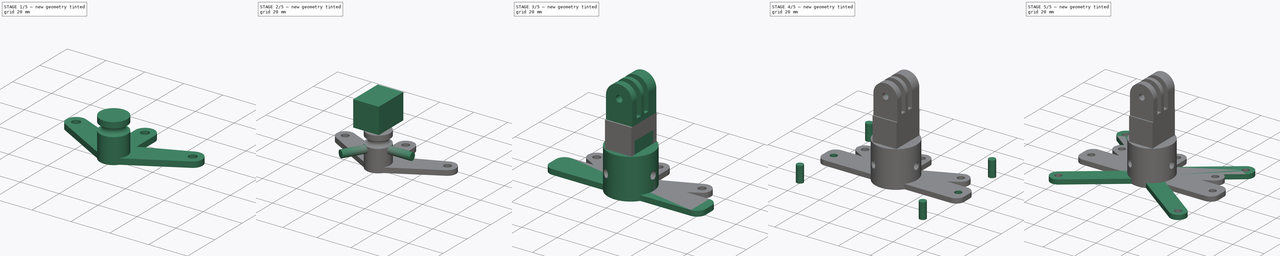
[diagram: build sequence overview — one tinted view per stage of 5, left to right]
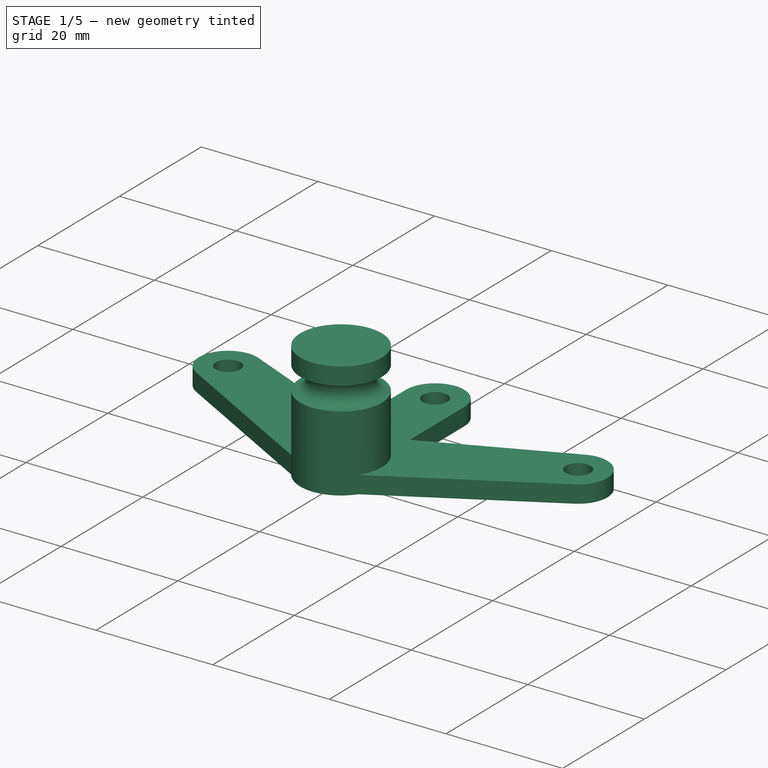
[diagram: stage 1 of 5 — iso view after this stage's code; geometry added in this stage tinted green]
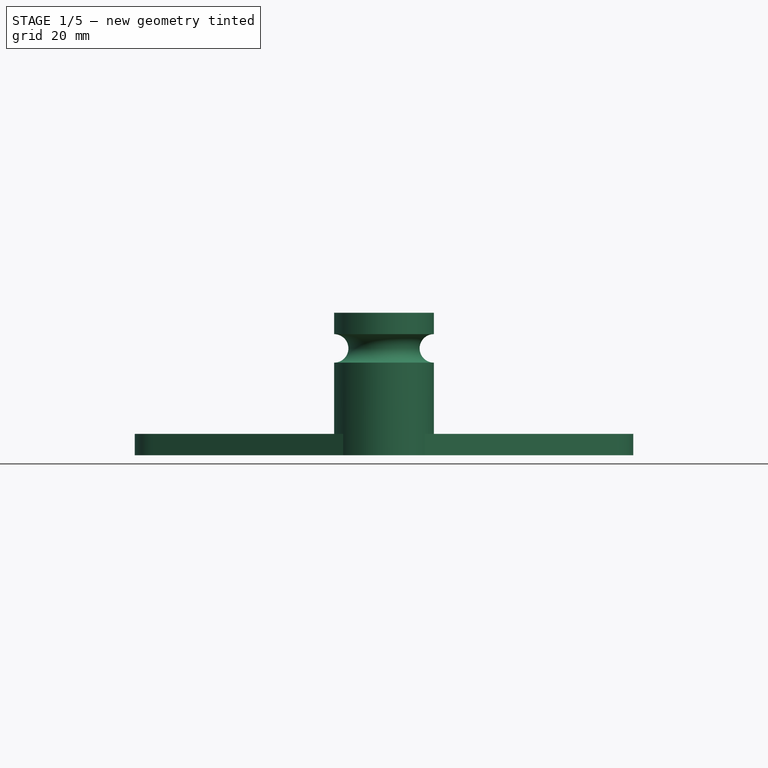
[diagram: stage 1 of 5 — front view after this stage's code; geometry added in this stage tinted green]
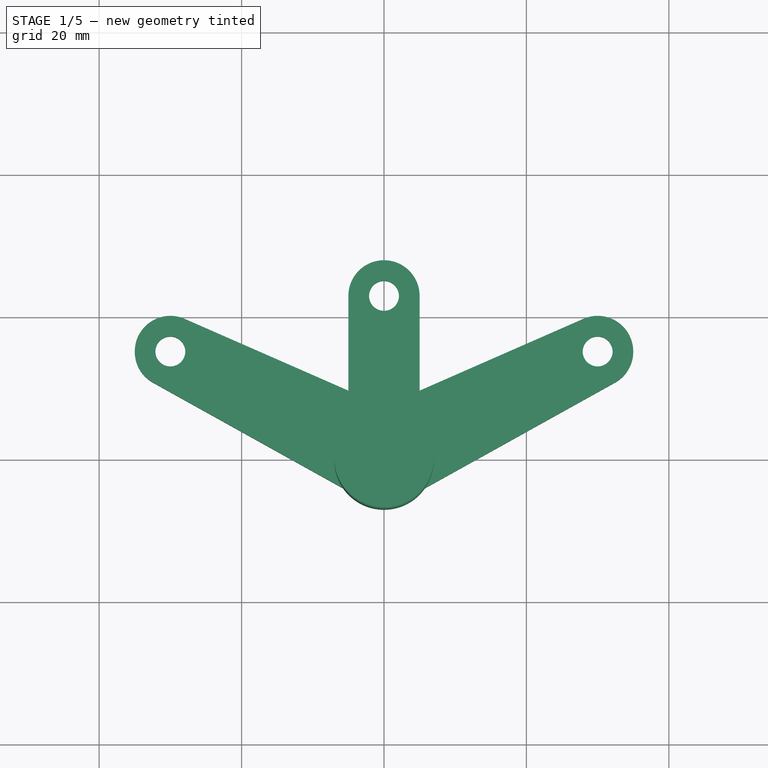
[diagram: stage 1 of 5 — top view after this stage's code; geometry added in this stage tinted green]
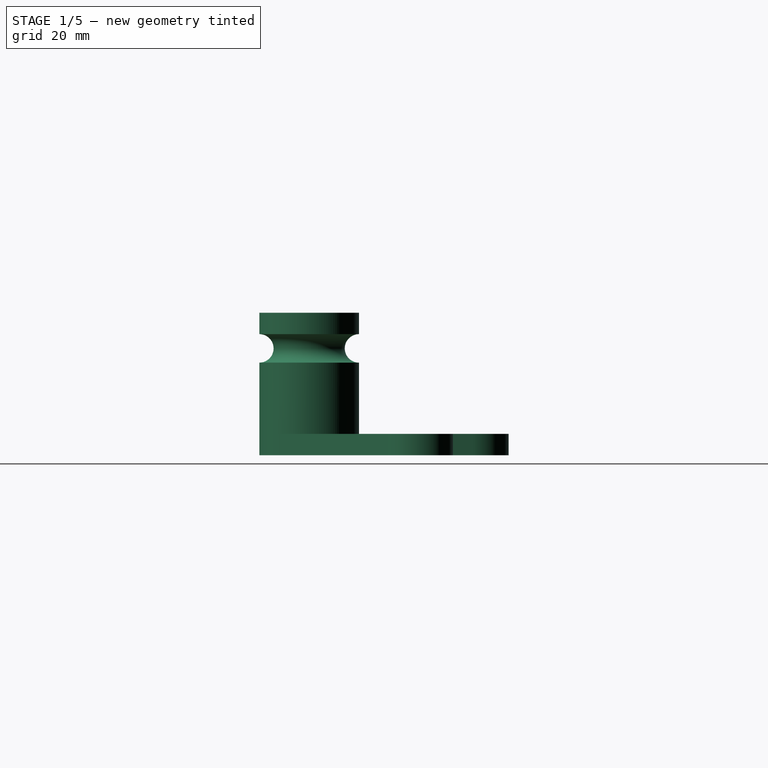
[diagram: stage 1 of 5 — right view after this stage's code; geometry added in this stage tinted green]
FCSTD DOCUMENT  (FreeCAD 0.19R23578 (Git))
Label: rpiAcamera_stand
License: All rights reserved
LicenseURL: http://en.wikipedia.org/wiki/All_rights_reserved
objects: Part::Cylinder×6, Part::MultiFuse×5, Part::FeaturePython×4, Part::Cut×4, Part::Box×3, Part::Torus×2, PartDesign::ShapeBinder×2, Sketcher::SketchObject×2, PartDesign::Pad×2, PartDesign::Body×2, Part::Feature×2, Part::Fillet×1, App::Part×1
note: 34 computed .brp shape members not serialized (recipe doc carries the construction recipe); baked Part::Feature solids carry a one-line shape summary decoded from their .brp

FEATURE [App::Part] Part  label="top part"
  Group = -> [Cut003003]
  Origin = -> Origin
  Placement = pos=(0,0,4) rot=(0,0,1;0rad)
FEATURE [Part::Cylinder] Cylinder005  label="base cylinder001"
  Angle = 360
  AttacherType = Attacher::AttachEngine3D
  Height = 20
  Radius = 7
FEATURE [Part::Torus] Torus001
  Angle1 = -180
  Angle2 = 180
  Angle3 = 360
  AttacherType = Attacher::AttachEngine3D
  Placement = pos=(0,0,15) rot=(0,0,1;0rad)
  Radius1 = 7
  Radius2 = 2
  expr: Radius1 = <<base cylinder001>>.Radius
  expr: .Placement.Base.z = <<base cylinder001>>.Height - 5mm
FEATURE [PartDesign::ShapeBinder] ShapeBinder
  Support = -> [Cylinder005]
  TraceSupport = false
FEATURE [Sketcher::SketchObject] Sketch003
  ExternalGeometry = -> [ShapeBinder]
  MapMode = 5
  Support = -> [XY_Plane003]
  sketch-geometry (13):
    g0: Circle CenterX=-30 CenterY=15.2041 CenterZ=0 NormalX=0 NormalY=0 NormalZ=1 AngleXU=0 Radius=2.1
    g1: Circle CenterX=30 CenterY=15.2041 CenterZ=0 NormalX=0 NormalY=0 NormalZ=1 AngleXU=0 Radius=2.1
    g2: Circle CenterX=4e-16 CenterY=23.0143 CenterZ=0 NormalX=0 NormalY=0 NormalZ=1 AngleXU=0 Radius=2.1
    g3: LineSegment StartX=-32.4307 StartY=10.8347 StartZ=0 EndX=-5.73209 EndY=-4.01785 EndZ=0
    g4: LineSegment StartX=-27.9921 StartY=19.7832 StartZ=0 EndX=-5 EndY=9.70126 EndZ=0
    g5: LineSegment StartX=5 StartY=23.0143 StartZ=0 EndX=5 EndY=9.70126 EndZ=0
    g6: LineSegment StartX=-5 StartY=9.70126 StartZ=0 EndX=-5 EndY=23.0143 EndZ=0
    g7: LineSegment StartX=5 StartY=9.70126 StartZ=0 EndX=27.9921 EndY=19.7832 EndZ=0
    g8: LineSegment StartX=5.73209 StartY=-4.01785 StartZ=0 EndX=32.4307 EndY=10.8347 EndZ=0
    g9: ArcOfCircle CenterX=4e-16 CenterY=23.0143 CenterZ=0 NormalX=0 NormalY=0 NormalZ=1 AngleXU=0 Radius=5 StartAngle=0 EndAngle=3.14159
    g10: ArcOfCircle CenterX=-30 CenterY=15.2041 CenterZ=0 NormalX=0 NormalY=0 NormalZ=1 AngleXU=0 Radius=5 StartAngle=1.15755 EndAngle=4.20472
    g11: ArcOfCircle CenterX=30 CenterY=15.2041 CenterZ=0 NormalX=0 NormalY=0 NormalZ=1 AngleXU=0 Radius=5 StartAngle=5.22006 EndAngle=8.26723
    g12: ArcOfCircle CenterX=-4e-16 CenterY=1.2e-15 CenterZ=0 NormalX=0 NormalY=0 NormalZ=1 AngleXU=0 Radius=7 StartAngle=3.75295 EndAngle=5.67183
  constraints (30):
    c: Equal(g0,g2)
    c: Equal(g2,g1)
    c: Radius(g2) = 2.1
    c: Symmetric(g1,g0,g-2)
    c: DistanceX(g0,g1) = 60
    c: Distance(g2,g0) = 31
    c: Distance(g2,g1) = 31
    c: Vertical(g5)
    c: Symmetric(g5,g6,g-2)
    c: Tangent(g9,g6) = 1.5708
    c: Tangent(g9,g5) = 1.5708
    c: Coincident(g9,g2)
    c: DistanceX(g6,g5) = 10
    c: Tangent(g10,g4) = 1.5708
    c: Tangent(g10,g3) = -1.5708
    c: Coincident(g10,g0)
    c: Radius(g10) = 5
    c: PointOnObject(g3,g-3)
    c: Tangent(g11,g8) = -1.5708
    c: Tangent(g11,g7) = 1.5708
    c: Radius(g11) = 5
    c: Coincident(g11,g1)
    c: PointOnObject(g8,g-3)
    c: Equal(g7,g4)
    c: Equal(g3,g8)
    c: Coincident(g12,g3)
    c: Coincident(g12,g8)
    c: Tangent(g12,g-3)
    c: Coincident(g4,g6)
    c: Coincident(g5,g7)
FEATURE [PartDesign::Pad] Pad003  label="base pad001"
  Direction = (1,1,1)
  Length = 3
  Length2 = 100
  Profile = -> Sketch003
  Type = 0
  expr: Length = 3
FEATURE [PartDesign::Body] Body003  label="base body001"
  Group = -> [Sketch003,Pad003,ShapeBinder]
  Origin = -> Origin003
  Tip = -> Pad003
FEATURE [Part::MultiFuse] Fusion005  label="base fusion001"
  Shapes = -> [Cylinder005,Body003]
FEATURE [Part::Cut] Cut003004  label="base cut for big metal plate"
  Base = -> Fusion005
  Tool = -> Torus001
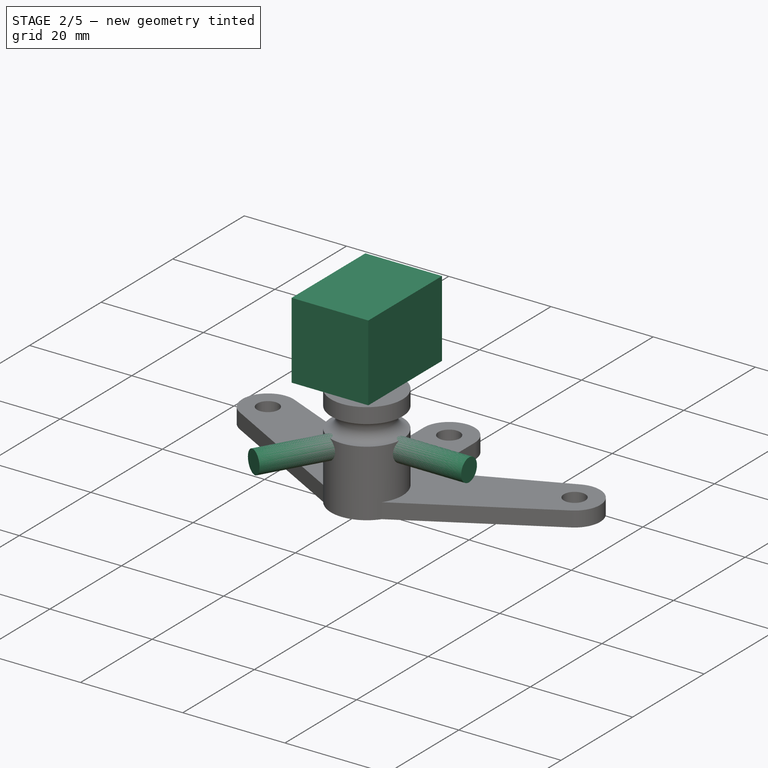
[diagram: stage 2 of 5 — iso view after this stage's code; geometry added in this stage tinted green]
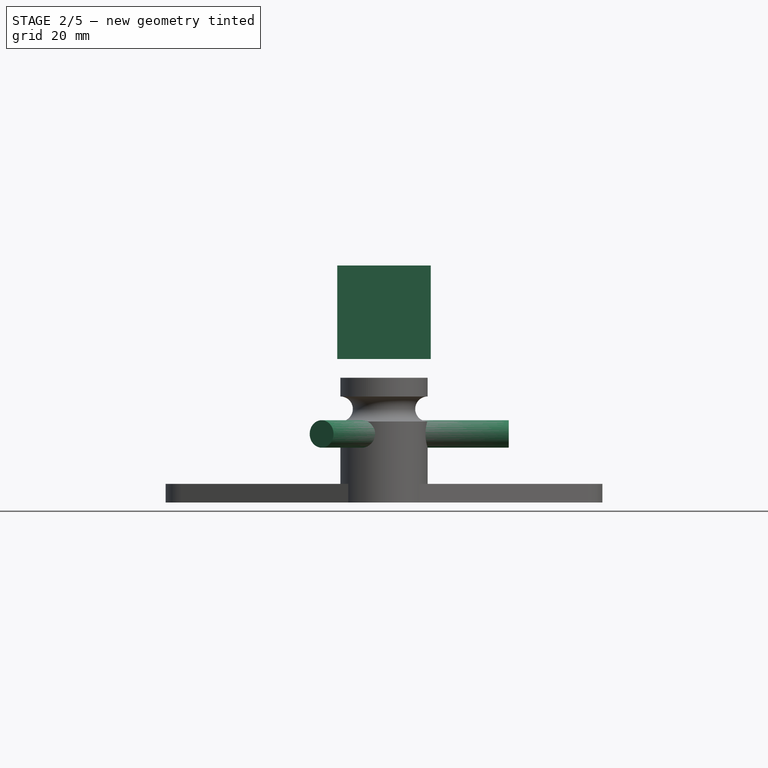
[diagram: stage 2 of 5 — front view after this stage's code; geometry added in this stage tinted green]
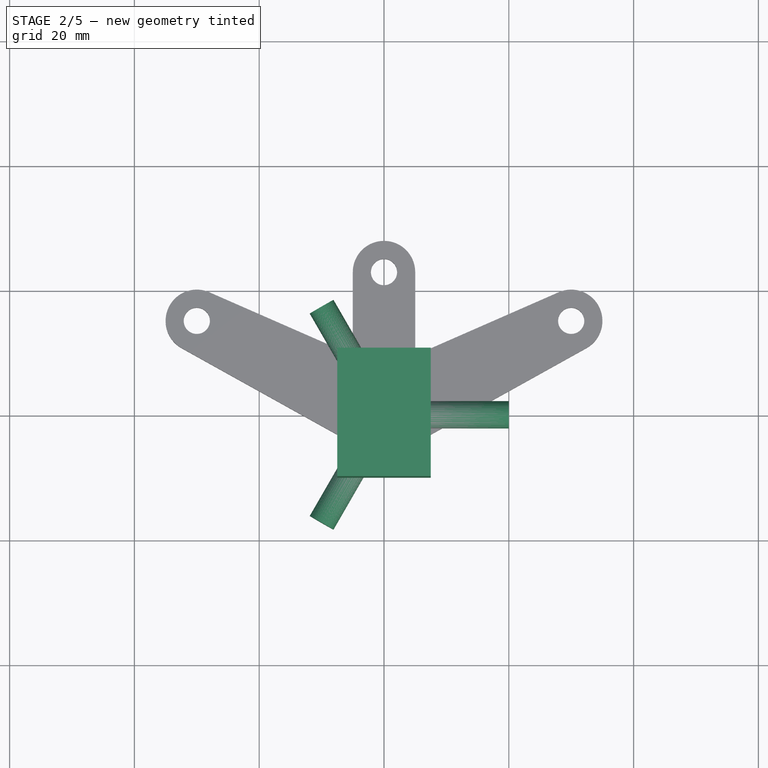
[diagram: stage 2 of 5 — top view after this stage's code; geometry added in this stage tinted green]
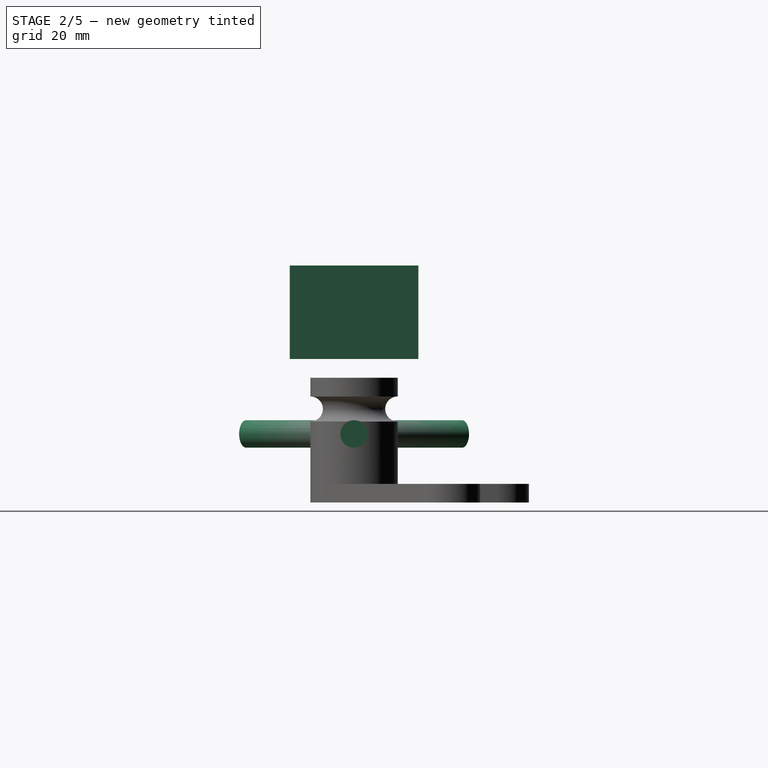
[diagram: stage 2 of 5 — right view after this stage's code; geometry added in this stage tinted green]
FEATURE [Part::Cylinder] Cylinder  label="base cylinder"
  Angle = 360
  AttacherType = Attacher::AttachEngine3D
  Height = 20
  Radius = 7
FEATURE [Part::FeaturePython] Tube  label="tube"  # WARN: FeaturePython — macro-defined, semantics opaque (R4)
  AttacherType = Attacher::AttachEngine3D
  Height = 20
  InnerRadius = 7.5
  OuterRadius = 13
  expr: InnerRadius = <<base cylinder>>.Radius + 0.5mm
  expr: OuterRadius = 13mm
  expr: Height = <<base cylinder>>.Height
FEATURE [Part::Feature] Cut003002  label="side 3"
  Placement = pos=(0,-1,38) rot=(0,0,1;0rad)
  shape: bbox 15 x 19.6 x 20 mm, 23 faces (baked)
  expr: .Placement.Base.z = <<tube>>.Height + <<top cylinder>>.Height + <<top cube>>.Height
FEATURE [Part::Cylinder] Cylinder003  label="top cylinder"
  Angle = 360
  AttacherType = Attacher::AttachEngine3D
  Height = 3
  Placement = pos=(0,0,20) rot=(0,0,1;0rad)
  Radius = 13
  expr: .Placement.Base.z = Tube.Height
  expr: Radius = Tube.OuterRadius
FEATURE [Part::Box] Box002  label="top cube"
  AttacherType = Attacher::AttachEngine3D
  Height = 15
  Length = 15
  Placement = pos=(-7.5,-10.3,23) rot=(0,0,1;0rad)
  Width = 20.6
  expr: .Placement.Base.x = -Length / 2
  expr: .Placement.Base.y = -Width / 2
  expr: .Placement.Base.z = <<tube>>.Height + <<top cylinder>>.Height
FEATURE [Part::Cylinder] Cylinder004  label="top insert holes"
  Angle = 360
  AttacherType = Attacher::AttachEngine3D
  Height = 20
  Placement = pos=(0,0,0) rot=(0,1,0;1.5708rad)
  Radius = 2.2
FEATURE [Part::FeaturePython] Array002  label="top insert hole array"  # Draft array (typed FeaturePython)
  Angle = 360
  ArrayType = 1
  Axis = (0,0,1)
  Base = -> Cylinder004
  Center = (0,0,0)
  Count = 3
  ExpandArray = false
  Fuse = false
  IntervalAxis = (0,0,0)
  IntervalX = (50,0,0)
  IntervalY = (0,50,0)
  IntervalZ = (0,0,50)
  NumberCircles = 3
  NumberPolar = 3
  NumberX = 2
  NumberY = 2
  NumberZ = 1
  Placement = pos=(0,0,11) rot=(0,0,1;0rad)
  PlacementList = 3 placements: [(0,0,0),(0,0,0),(0,0,0)]
  RadialDistance = 50
  ScaleList = (3) [(1,1,1),(1,1,1),(1,1,1)]
  Symmetry = 1
  TangentialDistance = 25
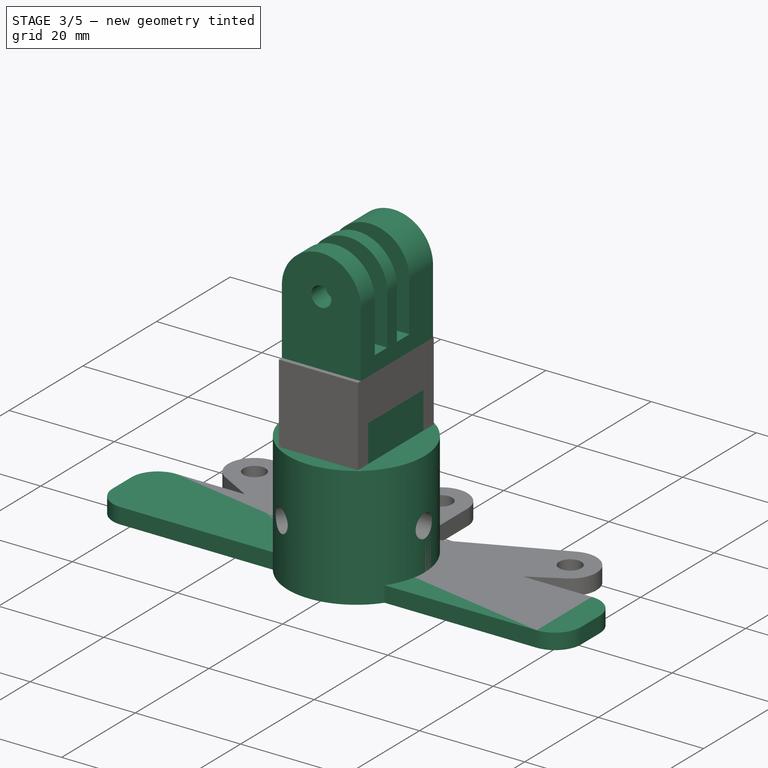
[diagram: stage 3 of 5 — iso view after this stage's code; geometry added in this stage tinted green]
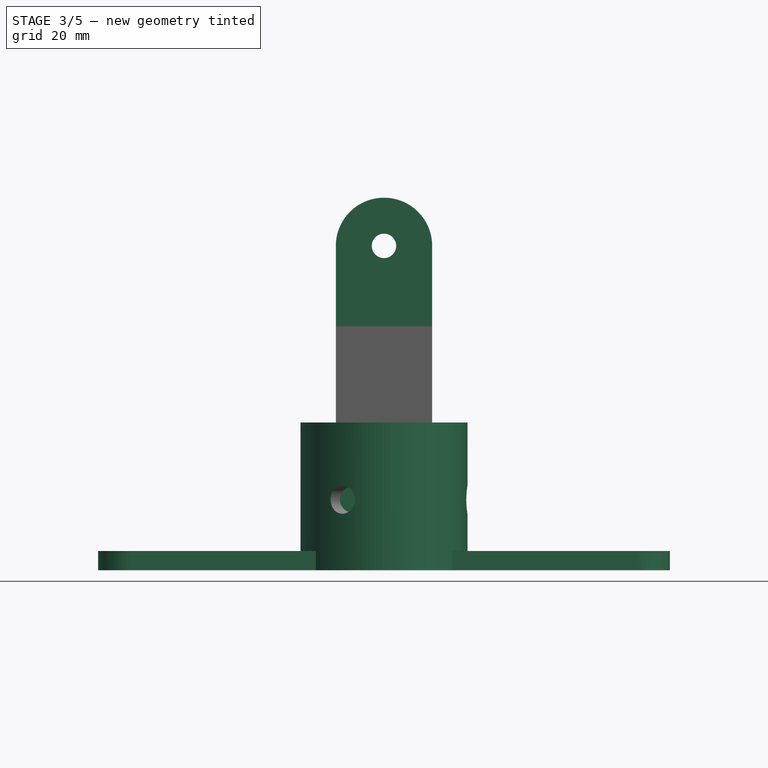
[diagram: stage 3 of 5 — front view after this stage's code; geometry added in this stage tinted green]
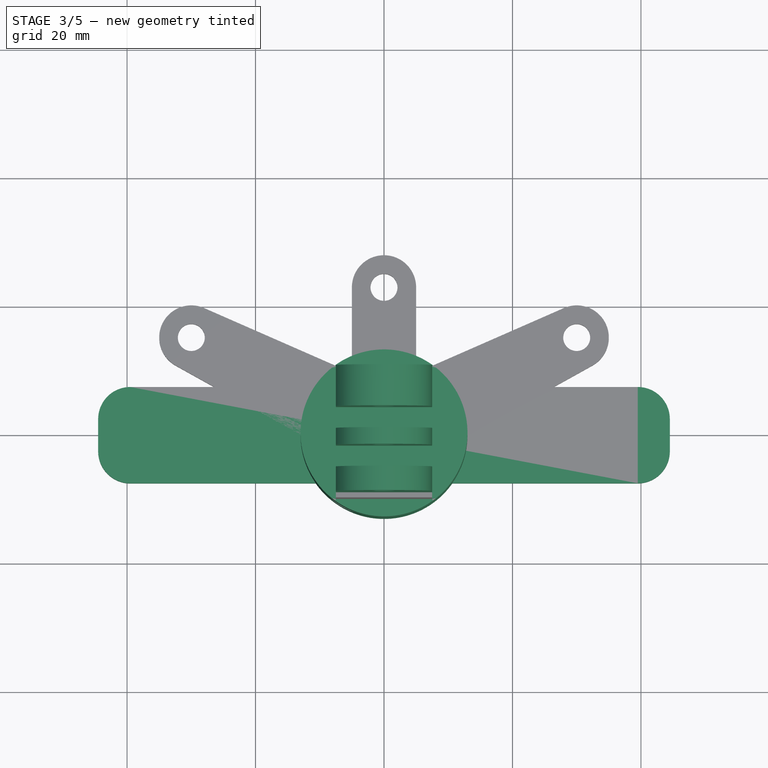
[diagram: stage 3 of 5 — top view after this stage's code; geometry added in this stage tinted green]
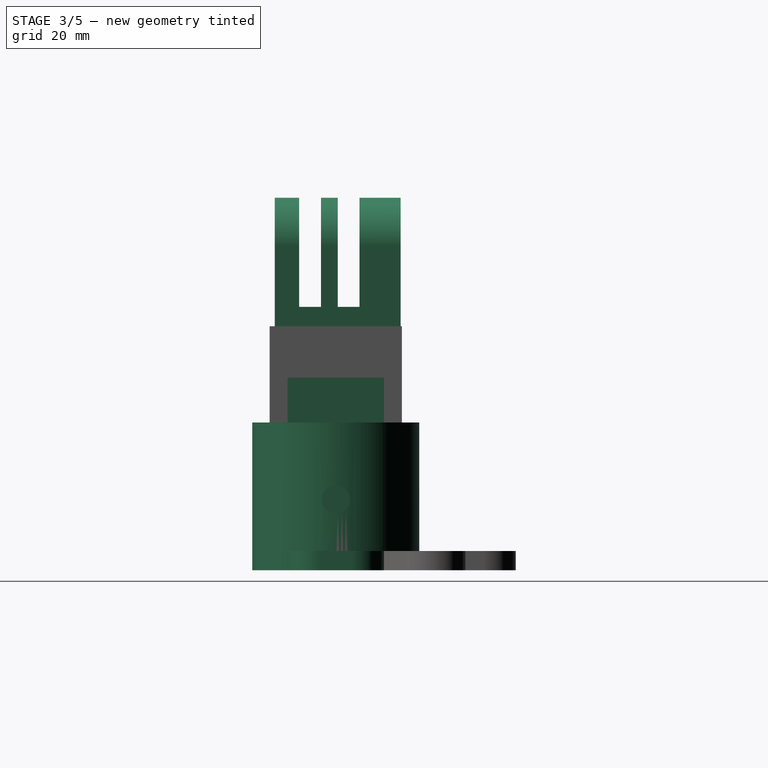
[diagram: stage 3 of 5 — right view after this stage's code; geometry added in this stage tinted green]
FEATURE [Part::Feature] Cut001001  label="side 2"
  Placement = pos=(0,0,30) rot=(0,0,1;1.5708rad)
  shape: bbox 15 x 15 x 20 mm, 16 faces (baked)
  expr: .Placement.Base.z = <<rpi3 extender>>.Height
FEATURE [Part::Box] Box  label="rpi3 attachment"
  AttacherType = Attacher::AttachEngine3D
  Height = 3
  Length = 89
  Placement = pos=(-44.5,-7.5,0) rot=(0,0,1;0rad)
  Width = 15
  expr: .Placement.Base.x = -Length / 2
  expr: .Placement.Base.y = -Width / 2
FEATURE [Part::Box] Box001  label="rpi3 extender"
  AttacherType = Attacher::AttachEngine3D
  Height = 30
  Length = 15
  Placement = pos=(-7.5,-7.5,0) rot=(0,0,1;0rad)
  Width = 15
  expr: Width = <<rpi3 attachment>>.Width
  expr: .Placement.Base.y = -Width / 2
  expr: .Placement.Base.x = -Length / 2
FEATURE [Part::Fillet] Fillet  label="rpi3 attachment fillet"
  Base = -> Box
  Edges = 4 edges r=5: [Edge1,Edge3,Edge5,Edge7]
FEATURE [Part::MultiFuse] Fusion003  label="top fusion"
  Shapes = -> [Cut003002,Cylinder003,Box002,Tube]
FEATURE [Part::Cut] Cut003003  label="top cut"
  Base = -> Fusion003
  Tool = -> Array002
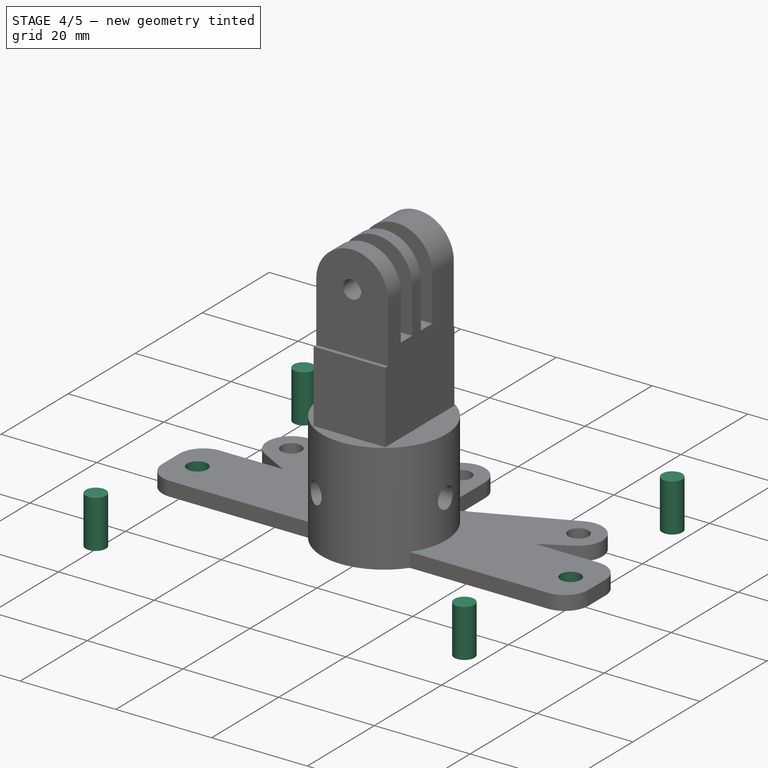
[diagram: stage 4 of 5 — iso view after this stage's code; geometry added in this stage tinted green]
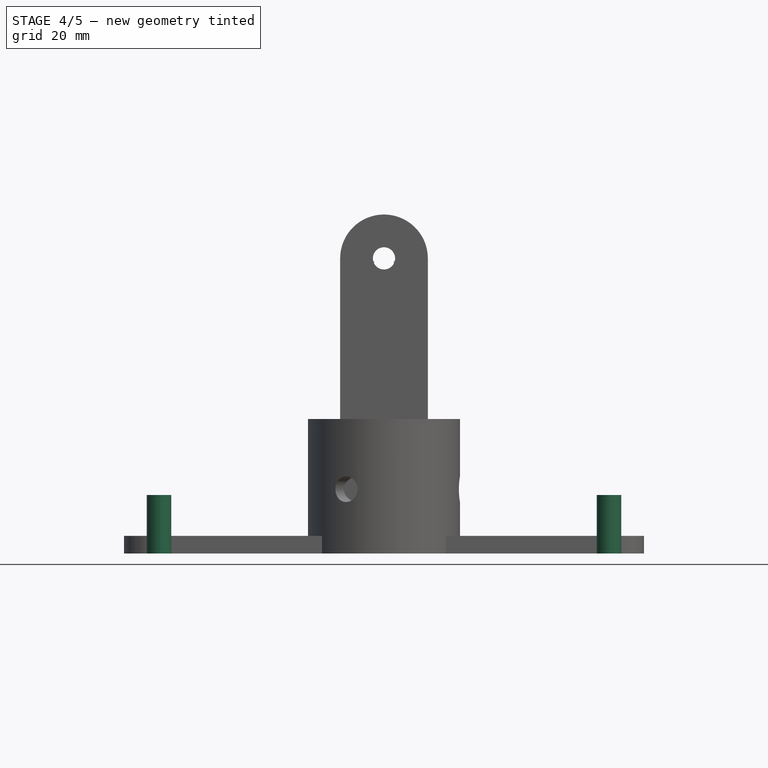
[diagram: stage 4 of 5 — front view after this stage's code; geometry added in this stage tinted green]
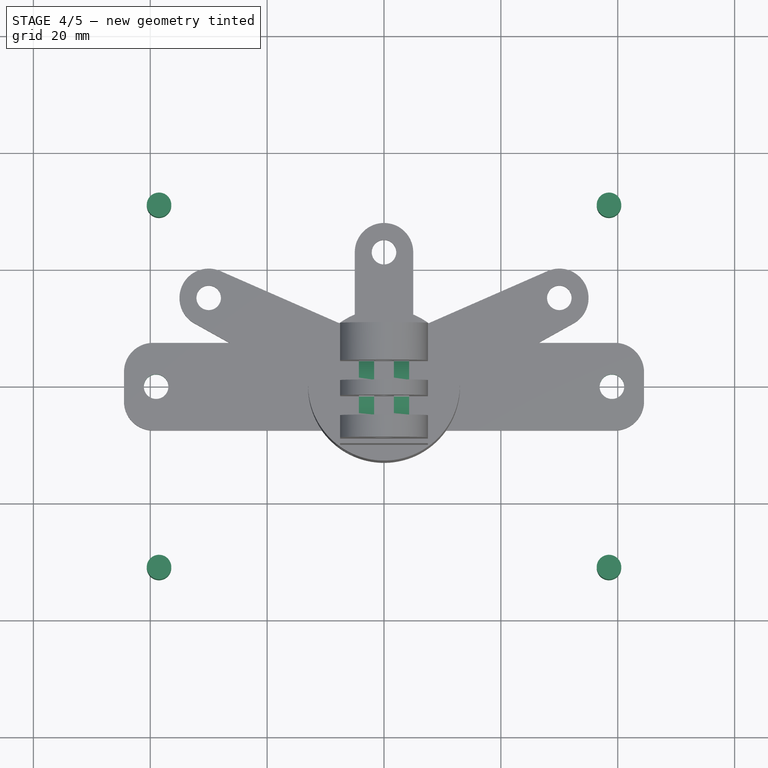
[diagram: stage 4 of 5 — top view after this stage's code; geometry added in this stage tinted green]
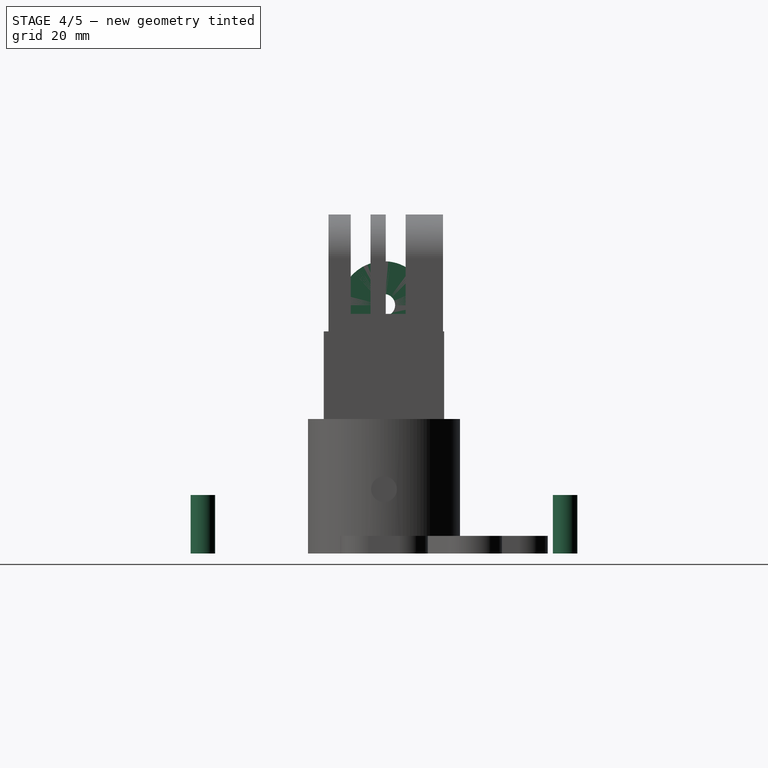
[diagram: stage 4 of 5 — right view after this stage's code; geometry added in this stage tinted green]
FEATURE [Part::Cylinder] Cylinder001  label="insert hole"
  Angle = 360
  AttacherType = Attacher::AttachEngine3D
  Height = 10
  Radius = 2.1
FEATURE [Part::FeaturePython] Array  label="insert hole array"  # Draft array (typed FeaturePython)
  Angle = 360
  ArrayType = 0
  Axis = (0,0,1)
  Base = -> Cylinder001
  Center = (0,0,0)
  Count = 4
  ExpandArray = false
  Fuse = false
  IntervalAxis = (0,0,0)
  IntervalX = (77,0,0)
  IntervalY = (0,62,0)
  IntervalZ = (0,0,100)
  NumberCircles = 3
  NumberPolar = 5
  NumberX = 2
  NumberY = 2
  NumberZ = 1
  Placement = pos=(-38.5,-31,0) rot=(0,0,1;0rad)
  PlacementList = 4 placements: [(0,0,0),(0,62,0),(77,0,0),(77,62,0)]
  RadialDistance = 50
  ScaleList = (4) [(1,1,1),(1,1,1),(1,1,1),(1,1,1)]
  Symmetry = 1
  TangentialDistance = 25
  expr: .Placement.Base.x = -.IntervalX.x / 2
  expr: .Placement.Base.y = -.IntervalY.y / 2
FEATURE [Part::Cylinder] Cylinder002  label="insert hole001"
  Angle = 360
  AttacherType = Attacher::AttachEngine3D
  Height = 10
  Radius = 2.1
FEATURE [Part::FeaturePython] Array001  label="insert hole array001"  # Draft array (typed FeaturePython)
  Angle = 360
  ArrayType = 0
  Axis = (0,0,1)
  Base = -> Cylinder002
  Center = (0,0,0)
  Count = 2
  ExpandArray = false
  Fuse = false
  IntervalAxis = (0,0,0)
  IntervalX = (78,0,0)
  IntervalY = (0,100,0)
  IntervalZ = (0,0,100)
  NumberCircles = 3
  NumberPolar = 5
  NumberX = 2
  NumberY = 1
  NumberZ = 1
  Placement = pos=(-39,0,0) rot=(0,0,1;0rad)
  PlacementList = 2 placements: [(0,0,0),(78,0,0)]
  RadialDistance = 50
  ScaleList = (2) [(1,1,1),(1,1,1)]
  Symmetry = 1
  TangentialDistance = 25
  expr: .Placement.Base.x = -.IntervalX.x / 2
FEATURE [Part::MultiFuse] Fusion002  label="attachment fusion"
  Shapes = -> [Box001,Fillet,Cut001001]
FEATURE [Part::Cut] Cut001002  label="arrachment cut"
  Base = -> Fusion002
  Tool = -> Array001
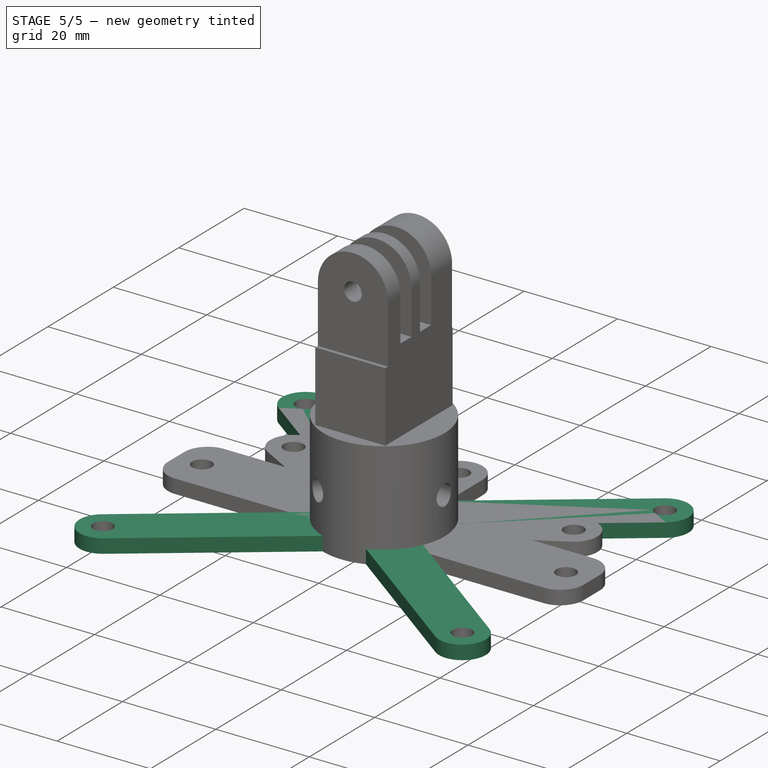
[diagram: stage 5 of 5 — iso view after this stage's code; geometry added in this stage tinted green]
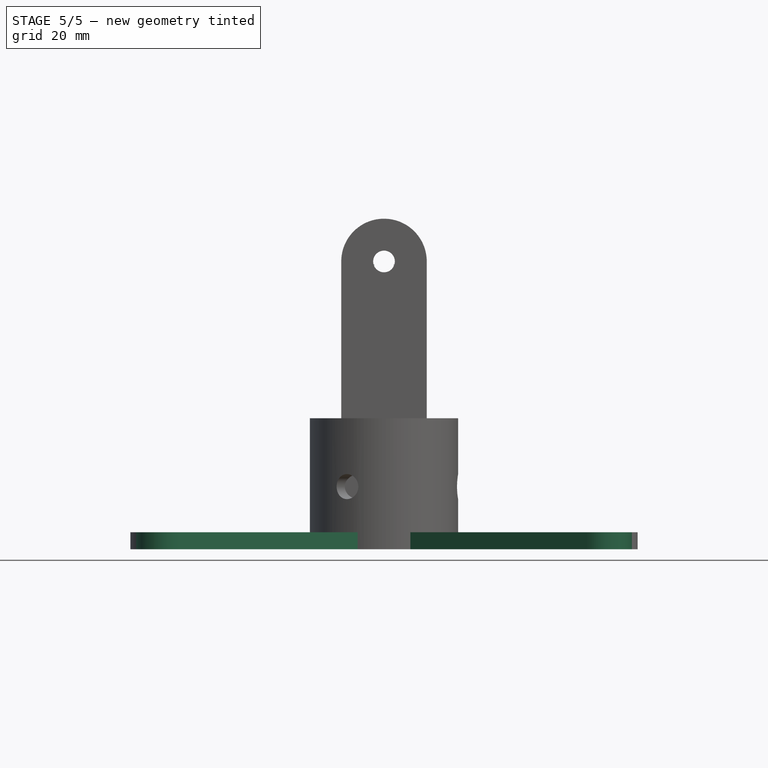
[diagram: stage 5 of 5 — front view after this stage's code; geometry added in this stage tinted green]
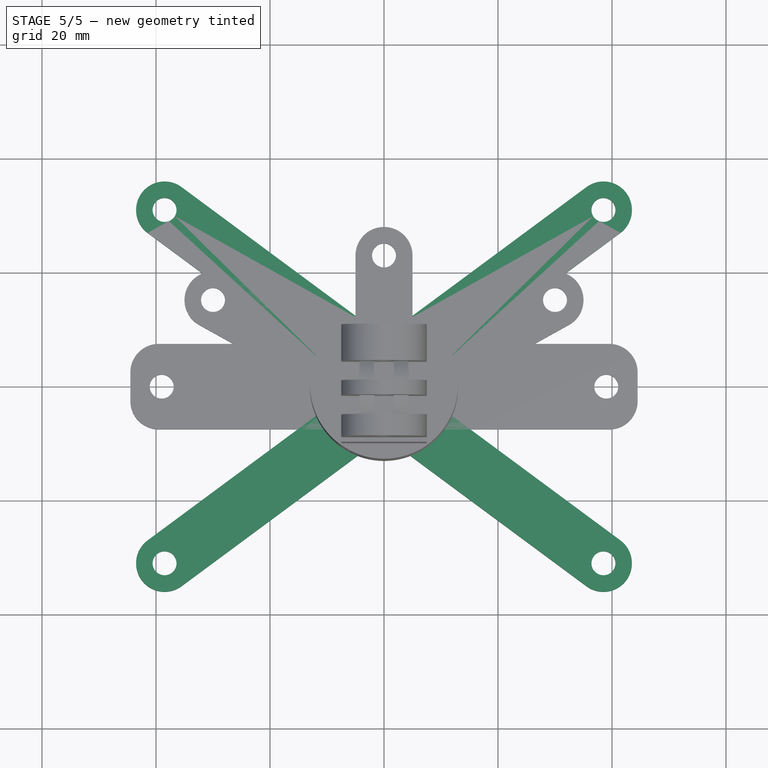
[diagram: stage 5 of 5 — top view after this stage's code; geometry added in this stage tinted green]
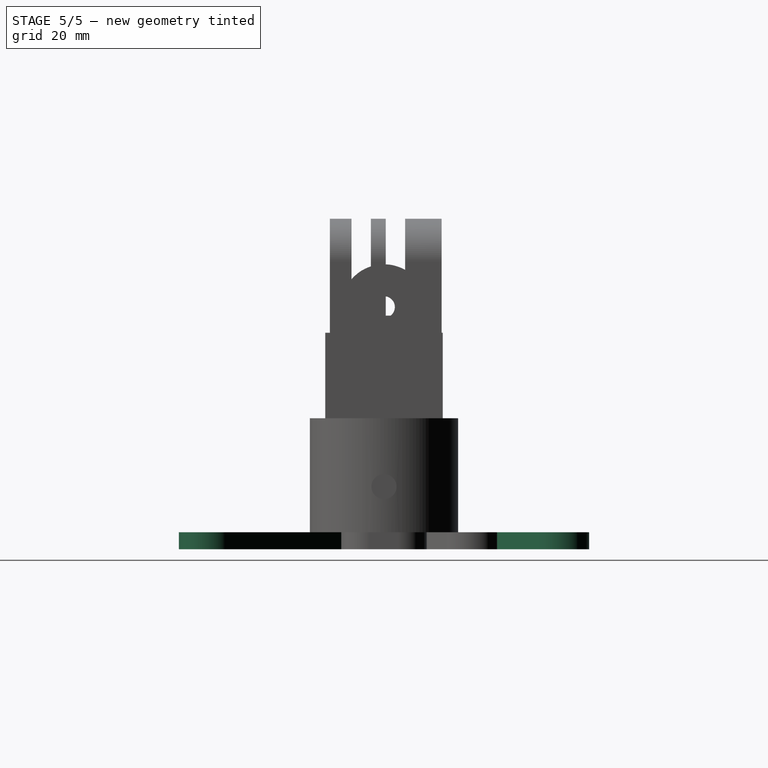
[diagram: stage 5 of 5 — right view after this stage's code; geometry added in this stage tinted green]
FEATURE [Part::Torus] Torus
  Angle1 = -180
  Angle2 = 180
  Angle3 = 360
  AttacherType = Attacher::AttachEngine3D
  Placement = pos=(0,0,15) rot=(0,0,1;0rad)
  Radius1 = 7
  Radius2 = 2
  expr: .Placement.Base.z = <<base cylinder>>.Height - 5mm
  expr: Radius1 = <<base cylinder>>.Radius
FEATURE [Part::MultiFuse] Fusion  label="extract fusion"
  Shapes = -> [Array,Torus]
FEATURE [PartDesign::ShapeBinder] ShapeBinder002
  Placement = pos=(-38.5,-31,0) rot=(0,0,1;0rad)
  Support = -> [Array]
  TraceSupport = false
FEATURE [Sketcher::SketchObject] Sketch002
  ExternalGeometry = -> [ShapeBinder002]
  MapMode = 5
  Support = -> [XY_Plane002]
  sketch-geometry (16):
    g0: LineSegment StartX=-10.2851 StartY=-3.90079 StartZ=0 EndX=-41.4742 EndY=-26.9808 EndZ=0
    g1: LineSegment StartX=-35.5258 StartY=-35.0192 StartZ=0 EndX=-3.65035 EndY=-11.4313 EndZ=0
    g2: LineSegment StartX=3.65035 StartY=-11.4313 StartZ=0 EndX=35.5258 EndY=-35.0192 EndZ=0
    g3: LineSegment StartX=10.2851 StartY=-3.90079 StartZ=0 EndX=41.4742 EndY=-26.9808 EndZ=0
    g4: LineSegment StartX=10.2851 StartY=3.90079 StartZ=0 EndX=41.4742 EndY=26.9808 EndZ=0
    g5: LineSegment StartX=3.65035 StartY=11.4313 StartZ=0 EndX=35.5258 EndY=35.0192 EndZ=0
    g6: LineSegment StartX=-3.65035 StartY=11.4313 StartZ=0 EndX=-35.5258 EndY=35.0192 EndZ=0
    g7: LineSegment StartX=-10.2851 StartY=3.90079 StartZ=0 EndX=-41.4742 EndY=26.9808 EndZ=0
    g8: ArcOfCircle CenterX=-1.7e-15 CenterY=5.98e-14 CenterZ=0 NormalX=0 NormalY=0 NormalZ=1 AngleXU=0 Radius=11 StartAngle=5.92068 EndAngle=6.64569
    g9: ArcOfCircle CenterX=-1.7e-15 CenterY=5.98e-14 CenterZ=0 NormalX=0 NormalY=0 NormalZ=1 AngleXU=0 Radius=12 StartAngle=1.2617 EndAngle=1.87989
    g10: ArcOfCircle CenterX=-1.7e-15 CenterY=5.98e-14 CenterZ=0 NormalX=0 NormalY=0 NormalZ=1 AngleXU=0 Radius=11 StartAngle=2.77909 EndAngle=3.5041
    g11: ArcOfCircle CenterX=-1.7e-15 CenterY=5.98e-14 CenterZ=0 NormalX=0 NormalY=0 NormalZ=1 AngleXU=0 Radius=12 StartAngle=4.40329 EndAngle=5.02148
    g12: ArcOfCircle CenterX=-38.5 CenterY=-31 CenterZ=0 NormalX=0 NormalY=0 NormalZ=1 AngleXU=0 Radius=5 StartAngle=2.20787 EndAngle=5.34946
    g13: ArcOfCircle CenterX=-38.5 CenterY=31 CenterZ=0 NormalX=0 NormalY=0 NormalZ=1 AngleXU=0 Radius=5 StartAngle=0.933724 EndAngle=4.07532
    g14: ArcOfCircle CenterX=38.5 CenterY=31 CenterZ=0 NormalX=0 NormalY=0 NormalZ=1 AngleXU=0 Radius=5 StartAngle=5.34946 EndAngle=8.49105
    g15: ArcOfCircle CenterX=38.5 CenterY=-31 CenterZ=0 NormalX=0 NormalY=0 NormalZ=1 AngleXU=0 Radius=5 StartAngle=4.07532 EndAngle=7.21691
  constraints (39):
    c: Parallel(g5,g4)
    c: Parallel(g6,g7)
    c: Parallel(g1,g0)
    c: Parallel(g3,g2)
    c: Coincident(g8,g4)
    c: Coincident(g8,g3)
    c: Coincident(g9,g6)
    c: Coincident(g10,g7)
    c: Coincident(g10,g0)
    c: Coincident(g11,g1)
    c: Coincident(g11,g2)
    c: Tangent(g12,g1) = -1.5708
    c: Tangent(g12,g0) = -1.5708
    c: Tangent(g13,g7) = 1.5708
    c: Tangent(g13,g6) = -1.5708
    c: Tangent(g14,g5) = 1.5708
    c: Tangent(g14,g4) = -1.5708
    c: Tangent(g15,g3) = 1.5708
    c: Tangent(g15,g2) = -1.5708
    c: Coincident(g5,g9)
    c: Coincident(g12,g-5)
    c: Coincident(g15,g-6)
    c: Coincident(g14,g-4)
    c: Coincident(g13,g-3)
    c: Coincident(g8,g9)
    c: Coincident(g8,g10)
    c: Coincident(g8,g11)
    c: Symmetric(g3,g4,g-1)
    c: Symmetric(g5,g6,g-2)
    c: Symmetric(g0,g7,g-1)
    c: Symmetric(g1,g2,g-2)
    c: Equal(g12,g15)
    c: Equal(g15,g14)
    c: Equal(g14,g13)
    c: Symmetric(g0,g3,g-2)
    c: Symmetric(g5,g2,g-1)
    c: Radius(g8) = 11
    c: Radius(g9) = 12
    c: Distance(g1,g0) = 10
FEATURE [PartDesign::Pad] Pad002  label="base pad"
  Direction = (1,1,1)
  Length = 3
  Length2 = 100
  Profile = -> Sketch002
  Type = 0
  expr: Length = 3
FEATURE [PartDesign::Body] Body002  label="base body"
  Group = -> [Sketch002,ShapeBinder002,Pad002]
  Origin = -> Origin002
  Tip = -> Pad002
FEATURE [Part::MultiFuse] Fusion001  label="base fusion"
  Shapes = -> [Cylinder,Body002]
FEATURE [Part::Cut] Cut  label="base cut"
  Base = -> Fusion001
  Tool = -> Fusion
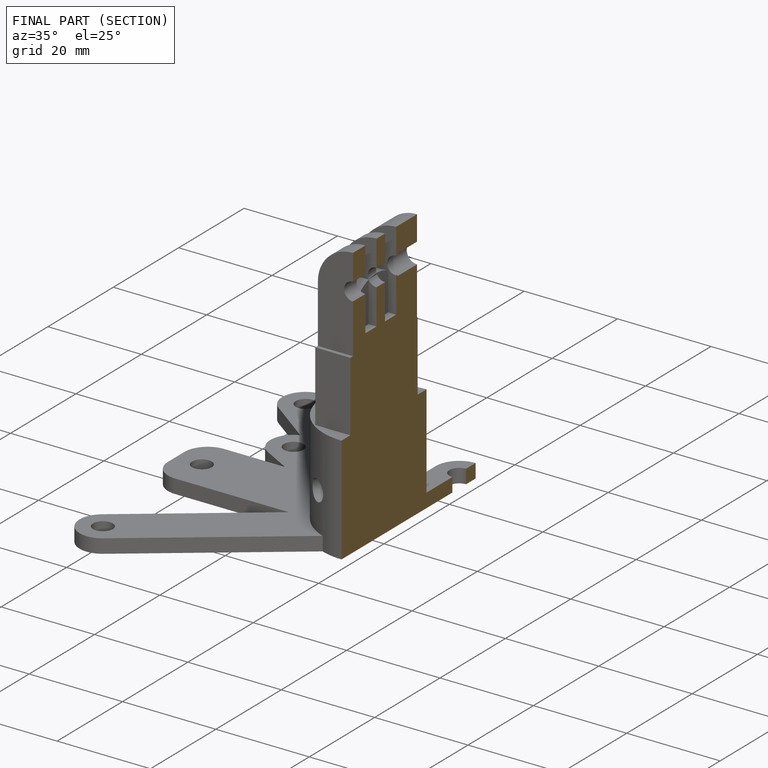
[diagram: finished part — half-section view (interior)]
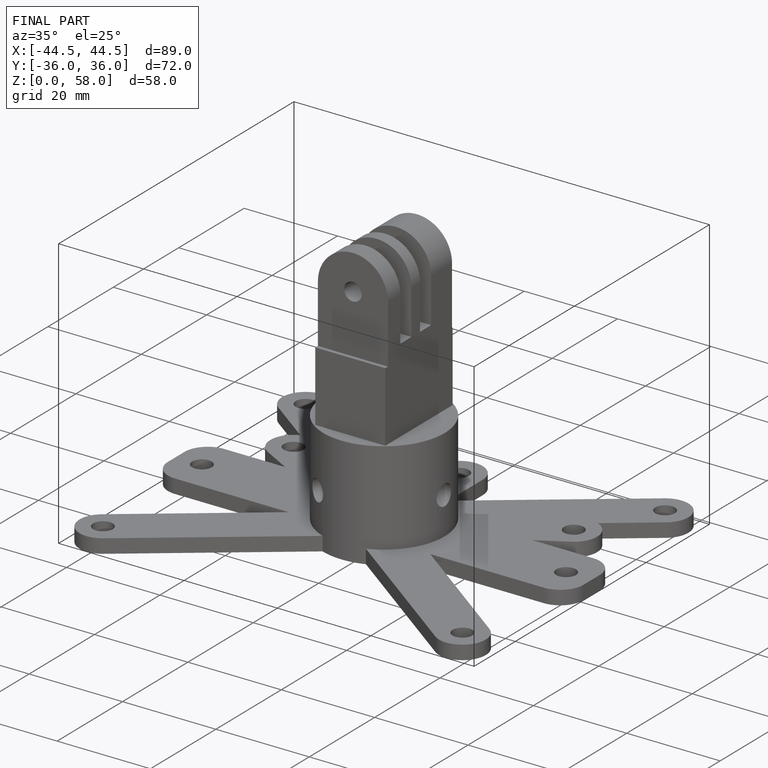
[diagram: finished part — iso view with bounding-box wireframe]
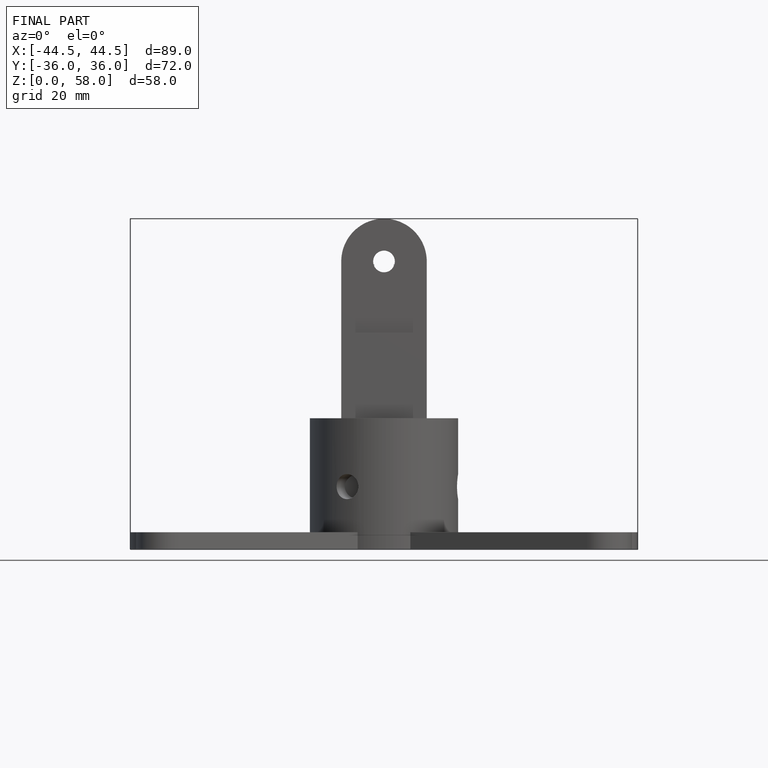
[diagram: finished part — front view with bounding-box wireframe]
